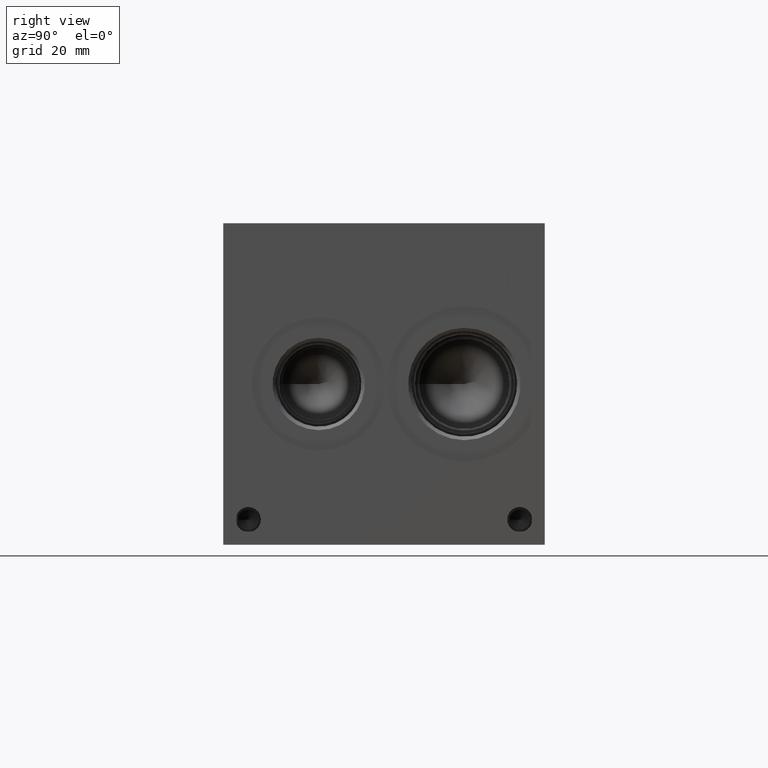
[diagram: clean part render]
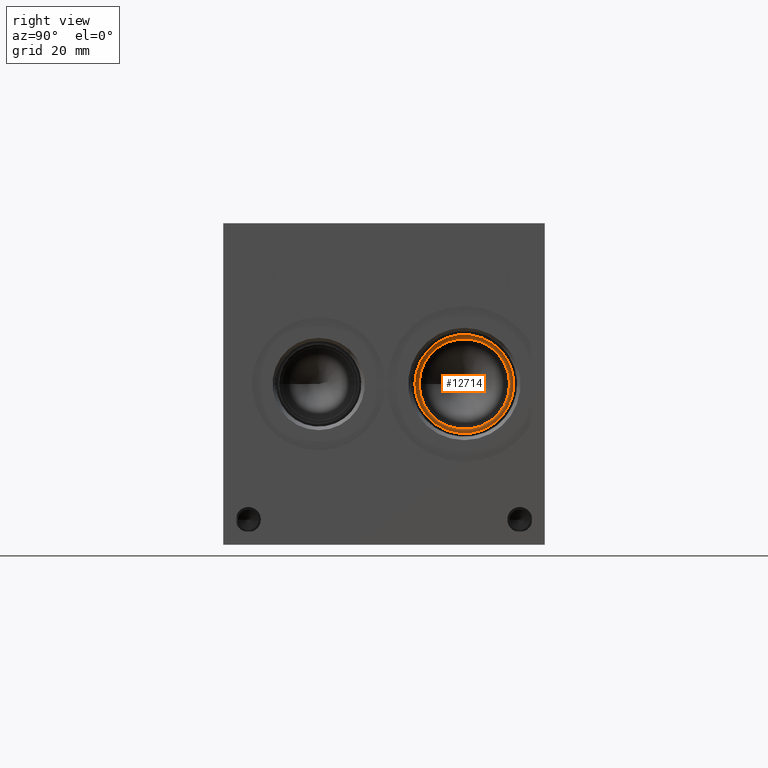
[diagram: same view with one face highlighted and labeled with its STEP entity id]
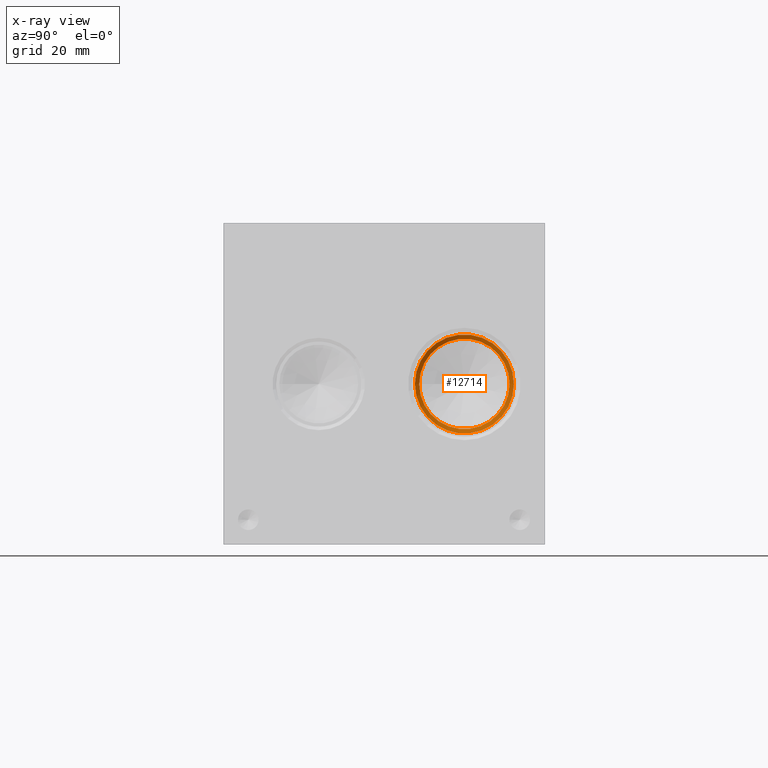
[diagram: x-ray of the same camera — body ghosted, the highlighted face saturated]
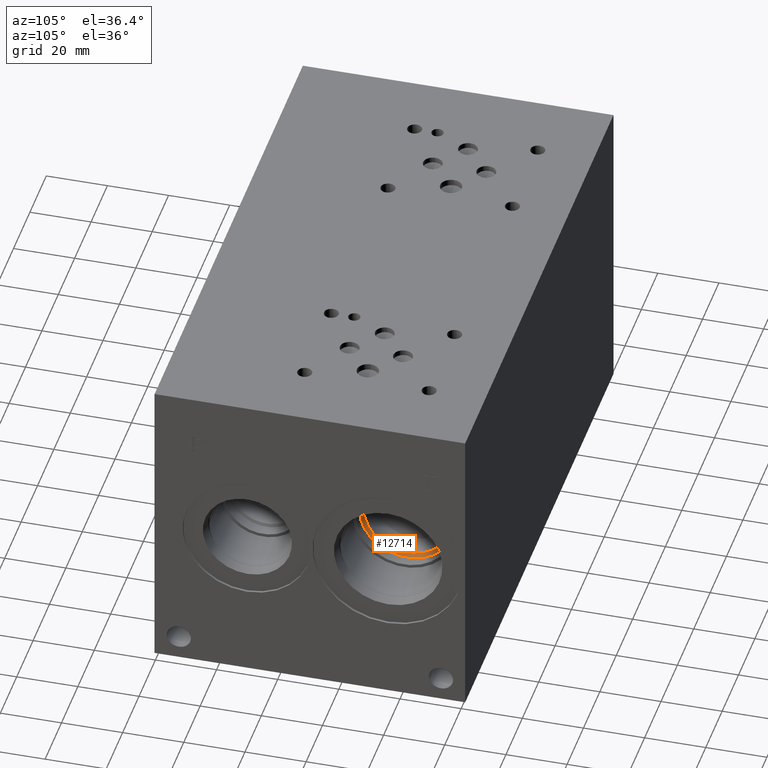
[diagram: same view with one face highlighted and labeled with its STEP entity id]
A machine part, right view. The second image highlights one B-rep face of the part: STEP entity #12714.
The next image is the same camera in x-ray: the body ghosted, the highlighted face saturated — about 0% of this face is hidden behind the body in this view.
A second angle (auxiliary view) of the same face is appended — the face is thin or edge-on in the first view.
In plain terms, the highlighted conical surface has half-angle 66 deg.
Its self-contained STEP definition (entity closure, byte-faithful):
#104=CONICAL_SURFACE('',#13312,7.81685,1.15191730631626);
#224=CIRCLE('',#13311,14.2875);
#225=CIRCLE('',#13313,15.6337);
#226=CIRCLE('',#13314,15.6337);
#1534=FACE_OUTER_BOUND('',#2261,.T.);
#2261=EDGE_LOOP('',(#10623,#10624,#10625,#10626,#10627));
#3505=LINE('',#21386,#4679);
#4679=VECTOR('',#15631,7.81685);
#5764=VERTEX_POINT('',#21379);
#5765=VERTEX_POINT('',#21383);
#5766=VERTEX_POINT('',#21384);
#7453=EDGE_CURVE('',#5764,#5764,#224,.T.);
#7455=EDGE_CURVE('',#5765,#5766,#225,.T.);
#7456=EDGE_CURVE('',#5766,#5764,#3505,.T.);
#7457=EDGE_CURVE('',#5766,#5765,#226,.T.);
#10623=ORIENTED_EDGE('',*,*,#7455,.T.);
#10624=ORIENTED_EDGE('',*,*,#7456,.T.);
#10625=ORIENTED_EDGE('',*,*,#7453,.T.);
#10626=ORIENTED_EDGE('',*,*,#7456,.F.);
#10627=ORIENTED_EDGE('',*,*,#7457,.T.);
#12714=ADVANCED_FACE('',(#1534),#104,.F.);
#13311=AXIS2_PLACEMENT_3D('',#21380,#15624,#15625);
#13312=AXIS2_PLACEMENT_3D('',#21382,#15627,#15628);
#13313=AXIS2_PLACEMENT_3D('',#21385,#15629,#15630);
#13314=AXIS2_PLACEMENT_3D('',#21387,#15632,#15633);
#15624=DIRECTION('center_axis',(-1.,0.,0.));
#15625=DIRECTION('ref_axis',(0.,1.,0.));
#15627=DIRECTION('center_axis',(1.,0.,0.));
#15628=DIRECTION('ref_axis',(0.,1.,0.));
#15629=DIRECTION('center_axis',(1.,0.,0.));
#15630=DIRECTION('ref_axis',(0.,1.,0.));
#15631=DIRECTION('',(-0.4067366430758,0.913545457642601,1.11877052057762E-16));
#15632=DIRECTION('center_axis',(1.,0.,0.));
#15633=DIRECTION('ref_axis',(0.,1.,0.));
#21379=CARTESIAN_POINT('',(156.575833143838,61.9125,50.8));
#21380=CARTESIAN_POINT('Origin',(156.575833143838,76.2,50.8));
#21382=CARTESIAN_POINT('Origin',(153.694914151246,76.2,50.8));
#21383=CARTESIAN_POINT('',(157.1752,91.8337,50.8));
#21384=CARTESIAN_POINT('',(157.1752,60.5663,50.8));
#21385=CARTESIAN_POINT('Origin',(157.1752,76.2,50.8));
#21386=CARTESIAN_POINT('',(153.694914151246,68.38315,50.8));
#21387=CARTESIAN_POINT('Origin',(157.1752,76.2,50.8));